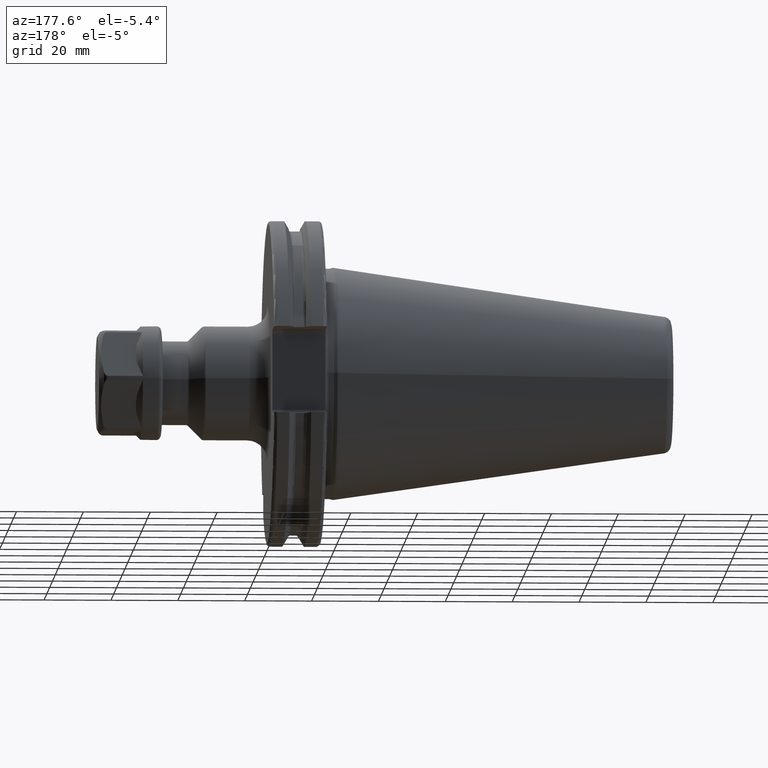
[diagram: clean part render]
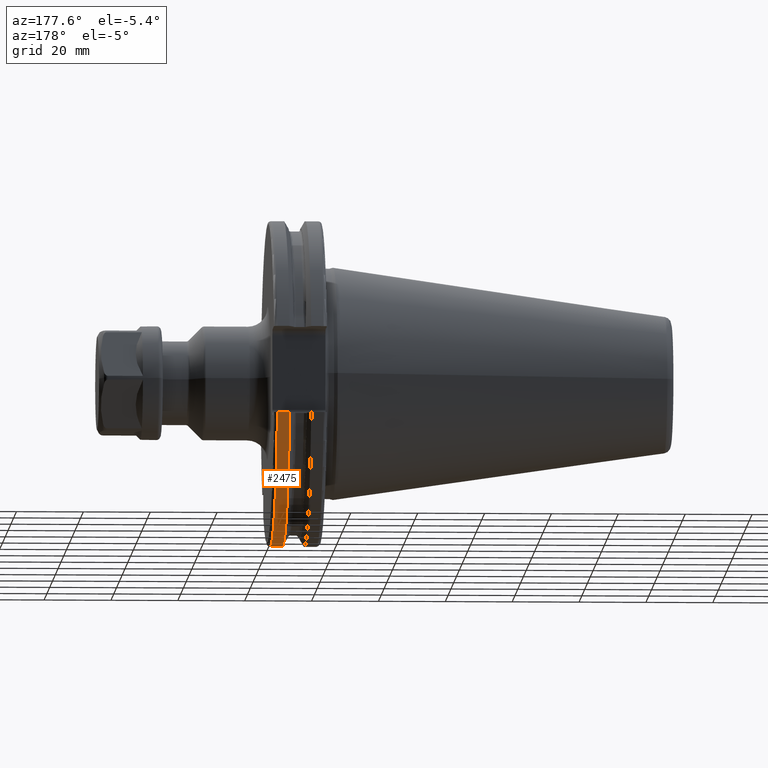
[diagram: same view with one face highlighted and labeled with its STEP entity id]
A machine part, auxiliary view. The second image highlights one B-rep face of the part: STEP entity #2475.
In plain terms, the highlighted cylindrical surface (partial cylindrical patch) has radius 48.7375 mm, axis along (1, 0, 0).
Its self-contained STEP definition (entity closure, byte-faithful):
#821=DIRECTION('',(1.E0,0.E0,0.E0));
#822=VECTOR('',#821,3.634621614173E0);
#823=CARTESIAN_POINT('',(1.441537838583E1,4.699929686974E1,-1.29E1));
#824=LINE('',#823,#822);
#825=CARTESIAN_POINT('',(1.441537838583E1,0.E0,0.E0));
#826=DIRECTION('',(1.E0,0.E0,0.E0));
#827=DIRECTION('',(0.E0,-6.124647345473E-1,-7.904979120376E-1));
#828=AXIS2_PLACEMENT_3D('',#825,#826,#827);
#830=DIRECTION('',(1.E0,0.E0,0.E0));
#831=VECTOR('',#830,3.634621614173E0);
#832=CARTESIAN_POINT('',(1.441537838583E1,-2.985E1,-3.852689198793E1));
#833=LINE('',#832,#831);
#834=CARTESIAN_POINT('',(1.805E1,0.E0,0.E0));
#835=DIRECTION('',(-1.E0,0.E0,0.E0));
#836=DIRECTION('',(0.E0,9.643354064066E-1,-2.646832521159E-1));
#837=AXIS2_PLACEMENT_3D('',#834,#835,#836);
#903=CARTESIAN_POINT('',(1.441537838583E1,4.699929686974E1,-1.29E1));
#915=CARTESIAN_POINT('',(1.441537838583E1,-2.985E1,-3.852689198793E1));
#1436=VERTEX_POINT('',#903);
#1450=CARTESIAN_POINT('',(1.805E1,4.699929686974E1,-1.29E1));
#1451=VERTEX_POINT('',#1450);
#1485=CARTESIAN_POINT('',(1.805E1,-2.985E1,-3.852689198793E1));
#1486=VERTEX_POINT('',#1485);
#1582=VERTEX_POINT('',#915);
#2463=CARTESIAN_POINT('',(-1.076325E2,0.E0,0.E0));
#2464=DIRECTION('',(1.E0,0.E0,0.E0));
#2465=DIRECTION('',(0.E0,-1.E0,0.E0));
#2466=AXIS2_PLACEMENT_3D('',#2463,#2464,#2465);
#2467=CYLINDRICAL_SURFACE('',#2466,4.87375E1);
#2468=ORIENTED_EDGE('',*,*,#1936,.F.);
#2470=ORIENTED_EDGE('',*,*,#2469,.F.);
#2471=ORIENTED_EDGE('',*,*,#2365,.T.);
#2472=ORIENTED_EDGE('',*,*,#1887,.F.);
#2473=EDGE_LOOP('',(#2468,#2470,#2471,#2472));
#2474=FACE_OUTER_BOUND('',#2473,.F.);
#2475=ADVANCED_FACE('',(#2474),#2467,.T.);
#829=CIRCLE('',#828,4.87375E1);
#838=CIRCLE('',#837,4.87375E1);
#1887=EDGE_CURVE('',#1451,#1486,#838,.T.);
#1936=EDGE_CURVE('',#1436,#1451,#824,.T.);
#2365=EDGE_CURVE('',#1582,#1486,#833,.T.);
#2469=EDGE_CURVE('',#1582,#1436,#829,.T.);